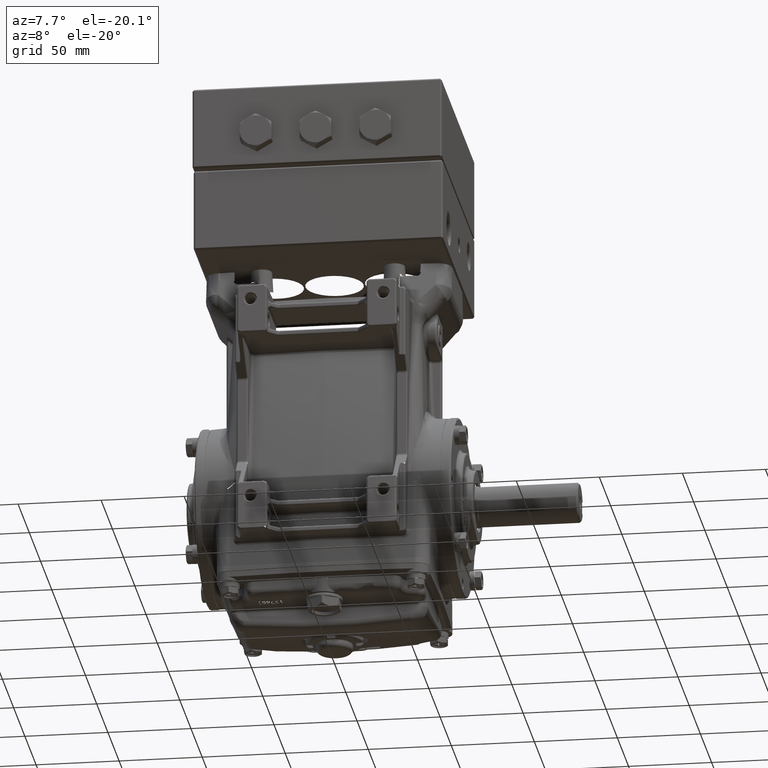
[diagram: clean part render]
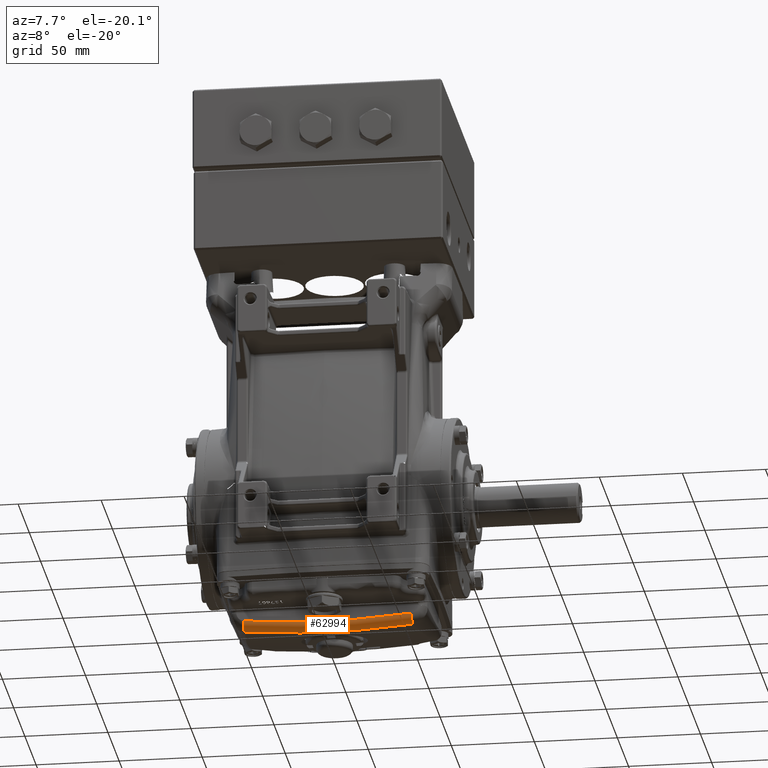
[diagram: same view with one face highlighted and labeled with its STEP entity id]
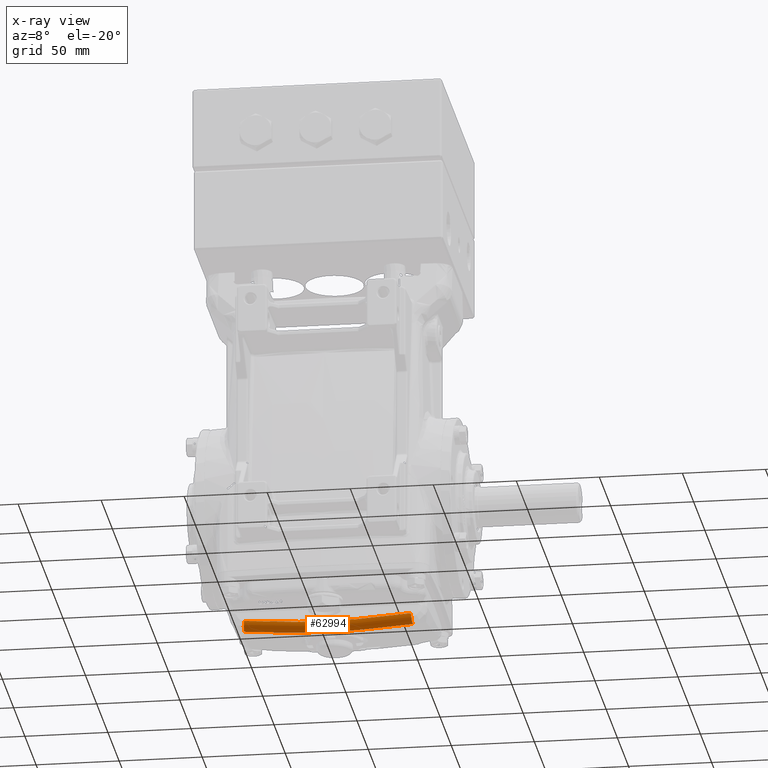
[diagram: x-ray of the same camera — body ghosted, the highlighted face saturated]
A machine part, auxiliary view. The second image highlights one B-rep face of the part: STEP entity #62994.
The next image is the same camera in x-ray: the body ghosted, the highlighted face saturated — about 0% of this face is hidden behind the body in this view.
In plain terms, the highlighted toroidal blend (fillet) surface has major radius 494.565 mm and minor (blend) radius 5 mm.
Its self-contained STEP definition (entity closure, byte-faithful):
#713 = ORIENTED_EDGE ( 'NONE', *, *, #4246, .F. ) ;
#2184 = DIRECTION ( 'NONE',  ( 0.000000000000000000, 1.000000000000000000, 0.000000000000000000 ) ) ;
#4246 = EDGE_CURVE ( 'NONE', #69709, #81668, #55811, .T. ) ;
#10679 = AXIS2_PLACEMENT_3D ( 'NONE', #46683, #72803, #14104 ) ;
#13918 = AXIS2_PLACEMENT_3D ( 'NONE', #20615, #2184, #19758 ) ;
#14104 = DIRECTION ( 'NONE',  ( 1.000000000000000000, 0.000000000000000000, -5.275390458629019537E-15 ) ) ;
#14926 = CARTESIAN_POINT ( 'NONE',  ( 1.996984731275934122, -1.045073800574857437, -3.226869221167618651 ) ) ;
#18959 = AXIS2_PLACEMENT_3D ( 'NONE', #68078, #62474, #49602 ) ;
#19758 = DIRECTION ( 'NONE',  ( 1.000000000000000000, 0.000000000000000000, 0.000000000000000000 ) ) ;
#20615 = CARTESIAN_POINT ( 'NONE',  ( 0.000000000000000000, -1.062992125984252745, 16.33858267716535551 ) ) ;
#25229 = EDGE_CURVE ( 'NONE', #63053, #81668, #74447, .T. ) ;
#27992 = DIRECTION ( 'NONE',  ( -0.1015409169292104258, 0.000000000000000000, 0.9948313636939555282 ) ) ;
#28448 = CIRCLE ( 'NONE', #31177, 19.66710084342715703 ) ;
#31177 = AXIS2_PLACEMENT_3D ( 'NONE', #44031, #43188, #38046 ) ;
#32667 = ORIENTED_EDGE ( 'NONE', *, *, #25229, .T. ) ;
#34565 = CARTESIAN_POINT ( 'NONE',  ( 1.977110063958240405, -1.259842519685039353, -3.031846117286614906 ) ) ;
#36502 = EDGE_LOOP ( 'NONE', ( #713, #36803, #76091, #32667 ) ) ;
#36803 = ORIENTED_EDGE ( 'NONE', *, *, #52133, .F. ) ;
#37509 = AXIS2_PLACEMENT_3D ( 'NONE', #79806, #54922, #27992 ) ;
#38046 = DIRECTION ( 'NONE',  ( -1.000000000000000000, 0.000000000000000000, 5.333931207850942581E-15 ) ) ;
#40485 = CARTESIAN_POINT ( 'NONE',  ( -1.977110063958240405, -1.259842519685039353, -3.031846117286614906 ) ) ;
#41146 = TOROIDAL_SURFACE ( 'NONE', #13918, 19.47106766168560554, 0.1968503937007874127 ) ;
#43188 = DIRECTION ( 'NONE',  ( 0.000000000000000000, 1.000000000000000000, -0.000000000000000000 ) ) ;
#44031 = CARTESIAN_POINT ( 'NONE',  ( 0.000000000000000000, -1.045073723253141296, 16.33858267716535551 ) ) ;
#44978 = CIRCLE ( 'NONE', #18959, 0.1968503937007871629 ) ;
#46683 = CARTESIAN_POINT ( 'NONE',  ( 0.000000000000000000, -1.259842519685039353, 16.33858267716535551 ) ) ;
#47895 = EDGE_CURVE ( 'NONE', #63053, #52059, #28448, .T. ) ;
#49602 = DIRECTION ( 'NONE',  ( 0.1015409169292104258, 0.000000000000000000, 0.9948313636939555282 ) ) ;
#52059 = VERTEX_POINT ( 'NONE', #56168 ) ;
#52133 = EDGE_CURVE ( 'NONE', #52059, #69709, #44978, .T. ) ;
#54922 = DIRECTION ( 'NONE',  ( -0.9948313636939557503, 0.000000000000000000, -0.1015409169292097735 ) ) ;
#55811 = CIRCLE ( 'NONE', #10679, 19.47106766168560554 ) ;
#56168 = CARTESIAN_POINT ( 'NONE',  ( -1.996984731275934122, -1.045073800574857437, -3.226869221167618651 ) ) ;
#60462 = FACE_OUTER_BOUND ( 'NONE', #36502, .T. ) ;
#62474 = DIRECTION ( 'NONE',  ( -0.9948313636939557503, -0.000000000000000000, 0.1015409169292097735 ) ) ;
#62994 = ADVANCED_FACE ( 'NONE', ( #60462 ), #41146, .T. ) ;
#63053 = VERTEX_POINT ( 'NONE', #14926 ) ;
#68078 = CARTESIAN_POINT ( 'NONE',  ( -1.977110063958240405, -1.062992125984252745, -3.031846117286617126 ) ) ;
#69709 = VERTEX_POINT ( 'NONE', #40485 ) ;
#72803 = DIRECTION ( 'NONE',  ( -0.000000000000000000, -1.000000000000000000, -0.000000000000000000 ) ) ;
#74447 = CIRCLE ( 'NONE', #37509, 0.1968503937007871629 ) ;
#76091 = ORIENTED_EDGE ( 'NONE', *, *, #47895, .F. ) ;
#79806 = CARTESIAN_POINT ( 'NONE',  ( 1.977110063958240405, -1.062992125984252745, -3.031846117286617126 ) ) ;
#81668 = VERTEX_POINT ( 'NONE', #34565 ) ;